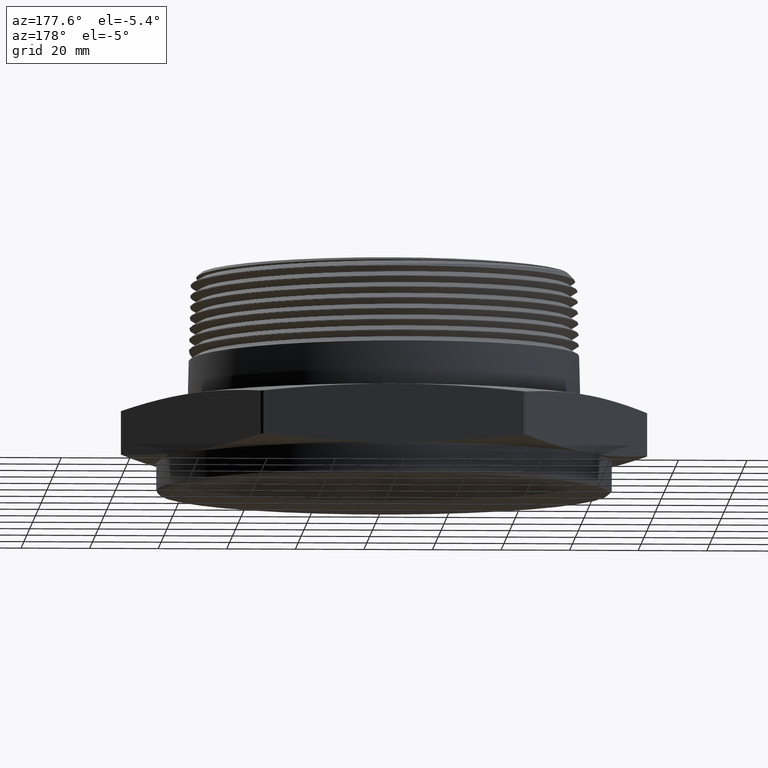
[diagram: clean part render]
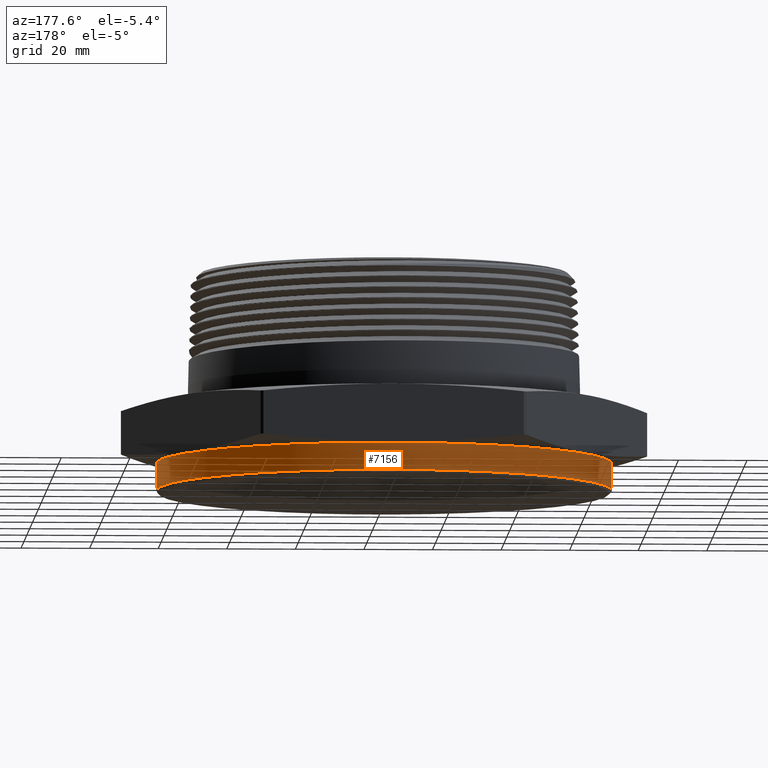
[diagram: same view with one face highlighted and labeled with its STEP entity id]
A machine part, auxiliary view. The second image highlights one B-rep face of the part: STEP entity #7156.
In plain terms, the highlighted cylindrical surface (partial cylindrical patch) has radius 66.421 mm, axis along (-0, -0, 1).
Its self-contained STEP definition (entity closure, byte-faithful):
#3582 = CIRCLE ( 'NONE', #8050, 2.615000000000000200 ) ;
#3620 = LINE ( 'NONE', #6620, #3622 ) ;
#3621 = CIRCLE ( 'NONE', #8061, 2.615000000000000200 ) ;
#3622 = VECTOR ( 'NONE', #6621, 39.37007874015748100 ) ;
#3623 = LINE ( 'NONE', #6625, #3625 ) ;
#3625 = VECTOR ( 'NONE', #6626, 39.37007874015748100 ) ;
#3648 = FACE_OUTER_BOUND ( 'NONE', #5530, .T. ) ;
#3650 = CYLINDRICAL_SURFACE ( 'NONE', #8077, 2.615000000000000200 ) ;
#3803 = VERTEX_POINT ( 'NONE', #5844 ) ;
#3812 = VERTEX_POINT ( 'NONE', #5853 ) ;
#3830 = VERTEX_POINT ( 'NONE', #5857 ) ;
#3833 = VERTEX_POINT ( 'NONE', #5850 ) ;
#3953 = EDGE_CURVE ( 'NONE', #3833, #3812, #3582, .T. ) ;
#3975 = EDGE_CURVE ( 'NONE', #3833, #3830, #3620, .T. ) ;
#3976 = EDGE_CURVE ( 'NONE', #3803, #3830, #3621, .T. ) ;
#3977 = EDGE_CURVE ( 'NONE', #3812, #3803, #3623, .T. ) ;
#5314 = ORIENTED_EDGE ( 'NONE', *, *, #3953, .T. ) ;
#5315 = ORIENTED_EDGE ( 'NONE', *, *, #3977, .T. ) ;
#5316 = ORIENTED_EDGE ( 'NONE', *, *, #3976, .T. ) ;
#5317 = ORIENTED_EDGE ( 'NONE', *, *, #3975, .F. ) ;
#5530 = EDGE_LOOP ( 'NONE', ( #5314, #5315, #5316, #5317 ) ) ;
#5844 = CARTESIAN_POINT ( 'NONE',  ( -2.615000000000000200, 3.202451379770328800E-016, -0.008097840331950585300 ) ) ;
#5850 = CARTESIAN_POINT ( 'NONE',  ( 2.615000000000000200, 0.0000000000000000000, -0.3199999999999989000 ) ) ;
#5853 = CARTESIAN_POINT ( 'NONE',  ( -2.615000000000000200, 3.202451379770328800E-016, -0.3199999999999989000 ) ) ;
#5857 = CARTESIAN_POINT ( 'NONE',  ( 2.615000000000000200, 0.0000000000000000000, -0.008097840331950904500 ) ) ;
#6552 = CARTESIAN_POINT ( 'NONE',  ( 0.0000000000000000000, 0.0000000000000000000, -0.3199999999999989000 ) ) ;
#6553 = DIRECTION ( 'NONE',  ( 0.0000000000000000000, 0.0000000000000000000, 1.000000000000000000 ) ) ;
#6554 = DIRECTION ( 'NONE',  ( -1.000000000000000000, 0.0000000000000000000, 0.0000000000000000000 ) ) ;
#6620 = CARTESIAN_POINT ( 'NONE',  ( 2.615000000000000200, 0.0000000000000000000, -0.3499999999999999800 ) ) ;
#6621 = DIRECTION ( 'NONE',  ( -0.0000000000000000000, -0.0000000000000000000, 1.000000000000000000 ) ) ;
#6625 = CARTESIAN_POINT ( 'NONE',  ( -2.615000000000000200, 3.202451379770328800E-016, -0.3499999999999999800 ) ) ;
#6626 = DIRECTION ( 'NONE',  ( -0.0000000000000000000, -0.0000000000000000000, 1.000000000000000000 ) ) ;
#6630 = CARTESIAN_POINT ( 'NONE',  ( 0.0000000000000000000, 0.0000000000000000000, -0.008097840331950744900 ) ) ;
#6631 = DIRECTION ( 'NONE',  ( -6.123233995736756200E-017, -0.0000000000000000000, -1.000000000000000000 ) ) ;
#6632 = DIRECTION ( 'NONE',  ( -1.000000000000000000, 0.0000000000000000000, 6.121193819455656200E-017 ) ) ;
#6723 = DIRECTION ( 'NONE',  ( 1.000000000000000000, 0.0000000000000000000, 0.0000000000000000000 ) ) ;
#6725 = CARTESIAN_POINT ( 'NONE',  ( 0.0000000000000000000, 0.0000000000000000000, -0.3499999999999999800 ) ) ;
#6726 = DIRECTION ( 'NONE',  ( -0.0000000000000000000, -0.0000000000000000000, 1.000000000000000000 ) ) ;
#7156 = ADVANCED_FACE ( 'NONE', ( #3648 ), #3650, .T. ) ;
#8050 = AXIS2_PLACEMENT_3D ( 'NONE', #6552, #6553, #6554 ) ;
#8061 = AXIS2_PLACEMENT_3D ( 'NONE', #6630, #6631, #6632 ) ;
#8077 = AXIS2_PLACEMENT_3D ( 'NONE', #6725, #6726, #6723 ) ;